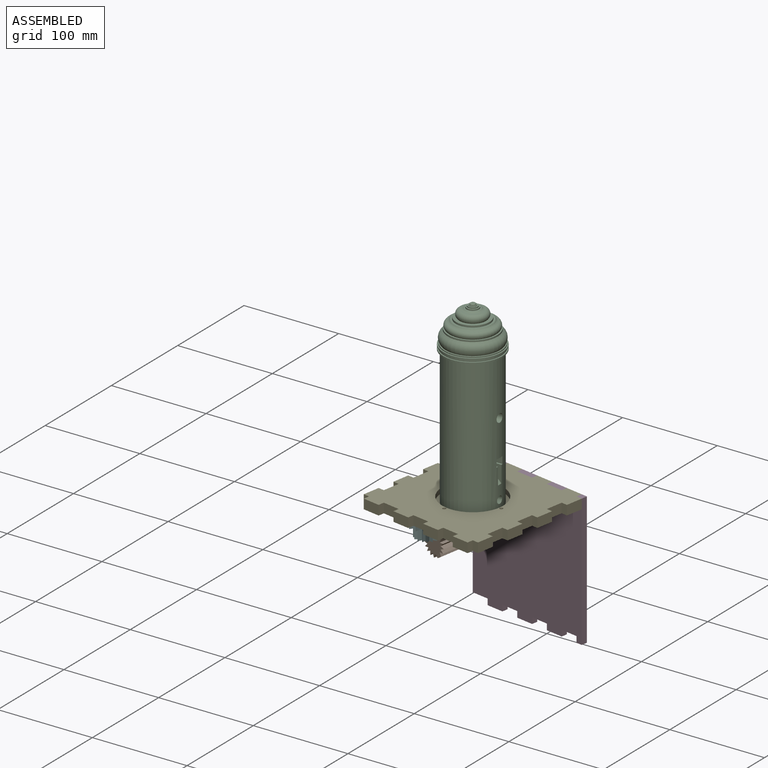
[diagram: assembled view]
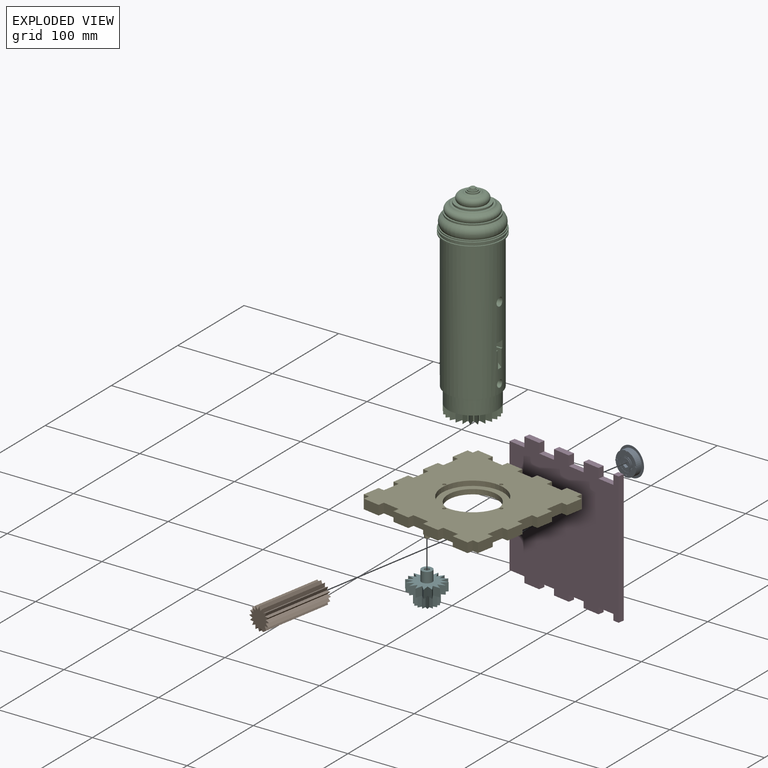
[diagram: exploded view]
GUIDED TOUR — MATED ASSEMBLY WITH SUBASSEMBLIES (Onshape document 083625c64aeed9dc65ab08f8, AutoMate assembly 083625c64aeed9dc65ab08f8_ea24382ef37ff4e3d2d488db_f4f4e9598ff6694f05141129_default)

This assembly has 22 component occurrences arranged in 6 top-level units: 5 individual components plus 1 subassembly (S0). The tour has two levels: first the top level, where each subassembly is treated as one rigid unit; then each subassembly is toured internally in its own section (nesting deeper than one subassembly level is flattened into its subassembly's section).

Components are labeled P0..P21 across the whole record; subassembly units are labeled S0..S0. A mate is a constraint between two units; its type names the relative motion it leaves free:
  CYLINDRICAL — leaves both rotation about and translation along the listed axis free,
  PLANAR — leaves sliding in the plane through the listed point (normal = the listed direction) and rotation about that normal free.
Axis/direction vectors are unit vectors and 'through' points are millimeter coordinates, both in the assembly's world frame.

TOP-LEVEL MATES (between units; each subassembly's internal mates are listed in its own section)
  1. PLANAR "Planar 4": P15 <-> P6, direction (0.985, -0.174, 0.000) through (39.18, -11.02, -2.93) mm
  2. PLANAR "Planar 2": P2 <-> S0, direction (-0.985, 0.174, 0.000) through (-59.83, 8.89, -51.19) mm
  3. PLANAR "Planar 6": P15 <-> P6, direction (0.174, 0.985, 0.000) through (42.31, -11.57, -2.93) mm
  4. PLANAR "Planar 5": P15 <-> P6, direction (0.000, 0.000, -1.000) through (-34.33, -62.51, -8.01) mm
  5. CYLINDRICAL "Cylindrical 4": P19 <-> P15, axis (0.000, 0.000, -1.000) through (-71.94, -78.05, -24.26) mm
  6. CYLINDRICAL "Cylindrical 3": P5 <-> P15, axis (0.000, 0.000, 1.000) through (-34.38, -62.53, -11.18) mm
  7. PLANAR "Planar 3": P2 <-> S0, direction (0.492, -0.087, 0.866) through (-55.42, 6.50, -48.44) mm
  8. PLANAR "Planar 8": P5 <-> P15, direction (0.000, 0.000, -1.000) through (-34.38, -62.53, -2.93) mm
  9. PLANAR "Planar 1": P15 <-> P19, direction (0.000, 0.000, -1.000) through (-34.33, -62.51, -8.01) mm
  10. CYLINDRICAL "Cylindrical 5": S0 <-> P6, axis (0.174, 0.985, 0.000) through (-56.57, 9.09, -51.19) mm
  11. PLANAR "Planar 9": P2 <-> S0, direction (0.174, 0.985, 0.000) through (-58.05, 5.35, -41.11) mm
  12. PLANAR "Planar 7": S0 <-> P6, direction (-0.174, -0.985, 0.000) through (-56.02, 12.22, -51.19) mm

TOP-LEVEL ASSEMBLY ORDER
  1. P15 — the base component [order heuristic]
  2. P6 [order verified]
  3. P19 — core [order heuristic]
  4. S0 [order verified]
  5. P5 — core [order heuristic]
  6. P2 [order verified]
(P6 verified with a relaxed clearance tolerance: the source model stores slight part interference there.)
Order-tag legend:
  [order verified] — this step's position reverses a verified removal order: the component was checked to insert without passing through the ones already placed.
  [order heuristic] — the first 3 components form the assembly's core: parts whose collision-free extraction could not be verified, listed in mate-graph order.

Of the 22 component occurrences, 19 carry the full construction recipe — the FeatureScript program that regenerates the part's solid from scratch; the rest are supplied as boundary geometry only. Each toured unit is shown spotlighted twice — assembled, then exploded with a leader line back to its socket (green = recipe-attached component, orange = geometry-only, blue = subassembly unit; the rest desaturated gray).
NOTE — document 2 of 2 of this assembly tour. The two overview renders and the header above are repeated from document 1; the component sections below continue where the previous document stopped.
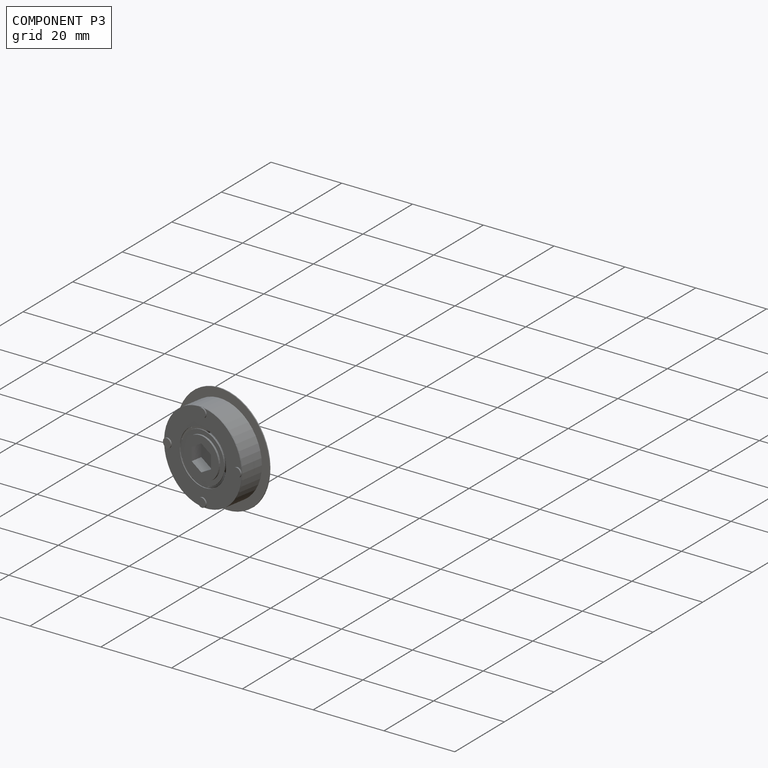
[diagram: component P3 — assembled]
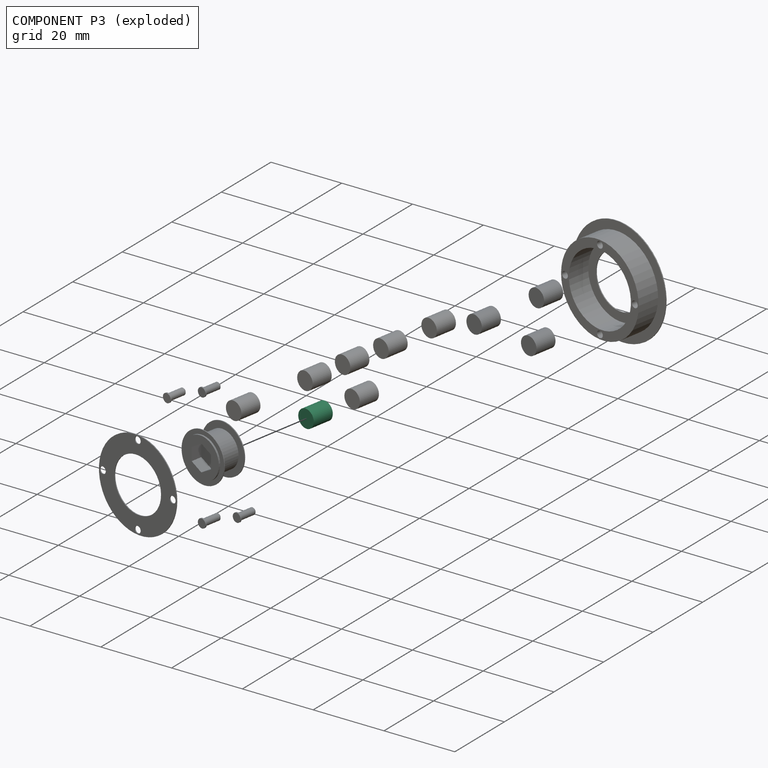
[diagram: component P3 — exploded]
COMPONENT P3 — same part as P0 (CADFS 00150288); its construction recipe is shown at P0.
Held by: PLANAR mate "Planar 4" to P1; PLANAR mate "Planar 4" to P1.
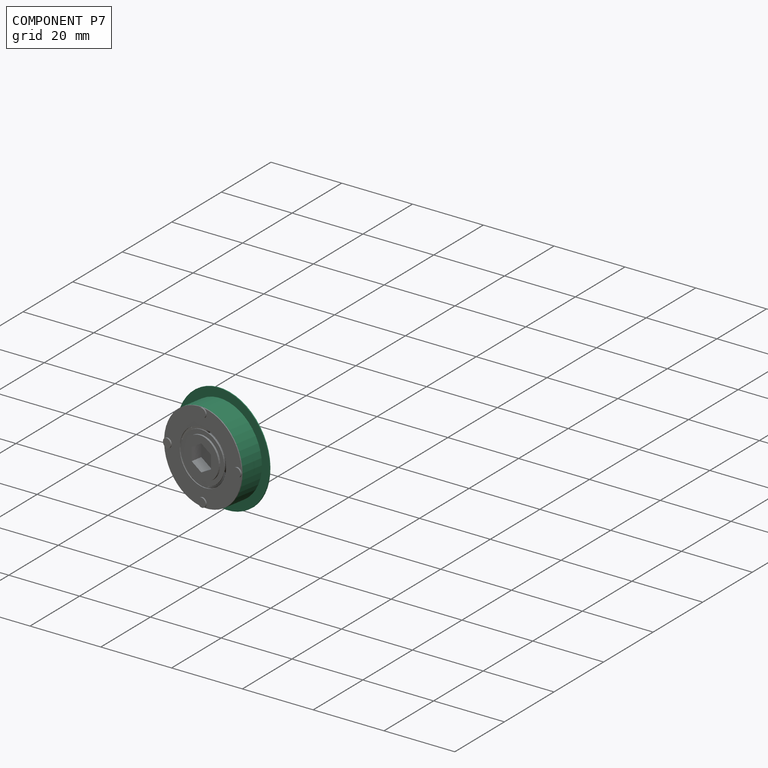
[diagram: component P7 — assembled]
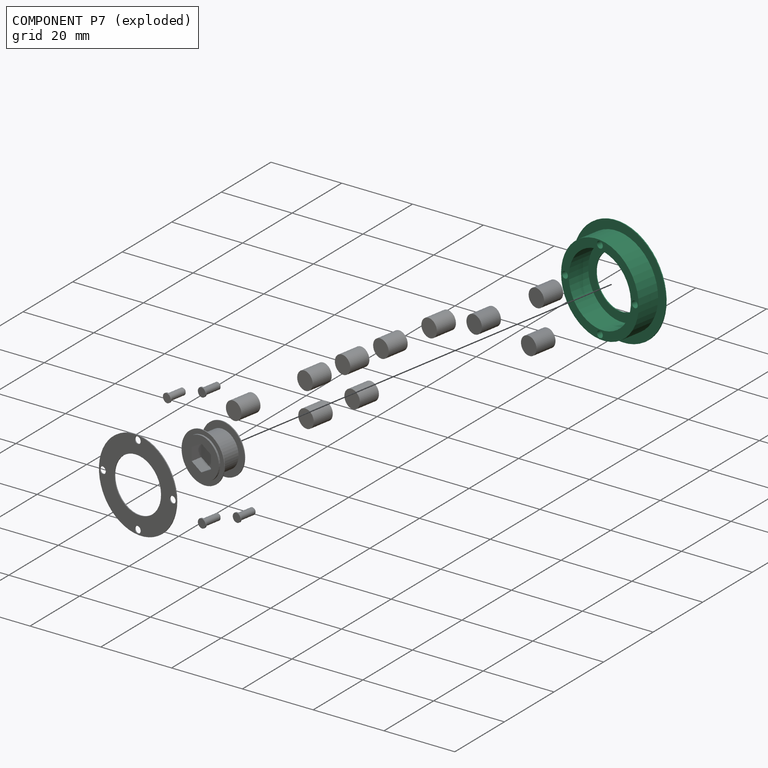
[diagram: component P7 — exploded]
COMPONENT P7 — recipe-attached (CADFS 00150289, mesh-verified: the recipe's output STEP matches this component's geometry to below the mesh-comparison resolution (tessellation chordal tolerance ~0.0654 mm)).
Held by: CYLINDRICAL mate "Cylindrical 2" to P20; PLANAR mate "Planar 6" to P17; PLANAR mate "Planar 12" to P20; PLANAR mate "Planar 1" to P1; PLANAR mate "Planar 2" to P10; CYLINDRICAL mate "Cylindrical 1" to P1; CYLINDRICAL mate "Cylindrical 1" to P1; CYLINDRICAL mate "Cylindrical 2" to P20; PLANAR mate "Planar 1" to P1; PLANAR mate "Planar 6" to P17; PLANAR mate "Planar 12" to P20; CYLINDRICAL mate "Cylindrical 1" to P1; PLANAR mate "Planar 2" to P10.
Construction recipe (FeatureScript — the CAD program that rebuilds this solid; sketch coordinates are in the units given by the * unit suffixes, e.g. mm):

FeatureScript 1511;
import(path : "onshape/std/geometry.fs", version : "1511.0");
import(path : "onshape/std/common.fs", version : "1511.0");
const mm = millimeter;
const VERTEX = EntityType.VERTEX;
const EDGE = EntityType.EDGE;
const FACE = EntityType.FACE;
const BODY = EntityType.BODY;
function v(x, y){return vector(x, y);}
function OD(order){return orderDisambiguation(order);}
function OSD(set){return originalSetDisambiguation(set);}
function TD(topology){return topologyDisambiguation(topology);}
function TDD(query){return trueDependencyDisambiguation(query);}
function sQuery(a, b, c) {return sketchEntityQuery(a, b, c);}

annotation { "Feature Type Name" : "Feature", "Feature Type Description" : "" }
export const myFeature = defineFeature(function(context is Context, id is Id, definition is map)
    precondition{}
    {
        {
            var Q0;
            Q0=qCreatedBy(makeId("Front.planeOp"),FACE);
            var sketch = newSketch(context, id + "F0", { "sketchPlane" : qUnion([Q0])});
            skLineSegment(sketch, "E0.bottom", {"start": v(-12.7, 2.54) * mm, "end": v(-10.16, 2.54) * mm});
            skLineSegment(sketch, "E0.top", {"start": v(-12.7, -3.8) * mm, "end": v(-10.16, -3.8) * mm});
            skLineSegment(sketch, "E0.left", {"start": v(-12.7, 2.54) * mm, "end": v(-12.7, -3.8) * mm});
            skLineSegment(sketch, "E0.right", {"start": v(-10.16, 2.54) * mm, "end": v(-10.16, -3.8) * mm});
            skLineSegment(sketch, "E1.bottom", {"start": v(-12.7, 2.54) * mm, "end": v(-7.62, 2.54) * mm});
            skLineSegment(sketch, "E1.top", {"start": v(-12.7, 2.8) * mm, "end": v(-7.62, 2.8) * mm});
            skLineSegment(sketch, "E1.left", {"start": v(-12.7, 2.54) * mm, "end": v(-12.7, 2.8) * mm});
            skLineSegment(sketch, "E1.right", {"start": v(-7.62, 2.54) * mm, "end": v(-7.62, 2.8) * mm});
            skLineSegment(sketch, "E2", {"start": v(0, 2.9) * mm, "end": v(0, -2.8) * mm});
            skLineSegment(sketch, "E3.bottom", {"start": v(-12.7, 2.54) * mm, "end": v(-15.24, 2.54) * mm});
            skLineSegment(sketch, "E3.top", {"start": v(-12.7, 2.8) * mm, "end": v(-15.24, 2.8) * mm});
            skLineSegment(sketch, "E3.right", {"start": v(-15.24, 2.54) * mm, "end": v(-15.24, 2.8) * mm});
            skSolve(sketch);
        }
        {
            var Q0;
            Q0 = qSketchRegion(id + "F0", true);
            var Q1;
            Q1=sQuery(id+"F0.wireOp",EDGE,"E2");
            revolve(context, id + "F1", {"entities" : qUnion([Q0]), "axis" : qUnion([Q1]), "revolveType" : RevolveType.FULL});
        }
        {
            var Q0;
            Q0=makeQuery(id+"F1.opRevolve","SWEPT_FACE",FACE,{"disambiguationData":[OSD([sQuery(id+"F0.wireOp",EDGE,"E0.top")])]});
            var sketch = newSketch(context, id + "F2", { "sketchPlane" : qUnion([Q0])});
            skCircle(sketch, "E4", {"center": v(0, 11.43) * mm, "radius": 0.95 * mm});
            skCircle(sketch, "E5", {"center": v(-11.43, 0) * mm, "radius": 0.95 * mm});
            skCircle(sketch, "E6", {"center": v(11.43, 0) * mm, "radius": 0.95 * mm});
            skCircle(sketch, "E7", {"center": v(0, -11.43) * mm, "radius": 0.95 * mm});
            skSolve(sketch);
        }
        {
            var Q0;
            Q0 = qSketchRegion(id + "F2", true);
            extrude(context, id + "F3", {"entities" : qUnion([Q0]), "operationType" : NewBodyOperationType.REMOVE, "oppositeDirection" : true, "depth" : 5.08 * mm});
        }
    });
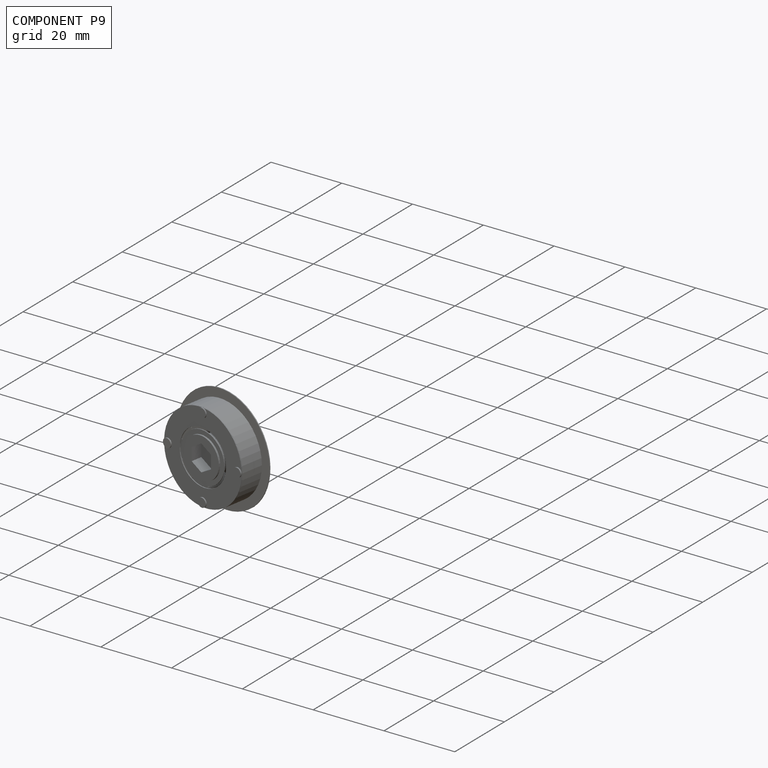
[diagram: component P9 — assembled]
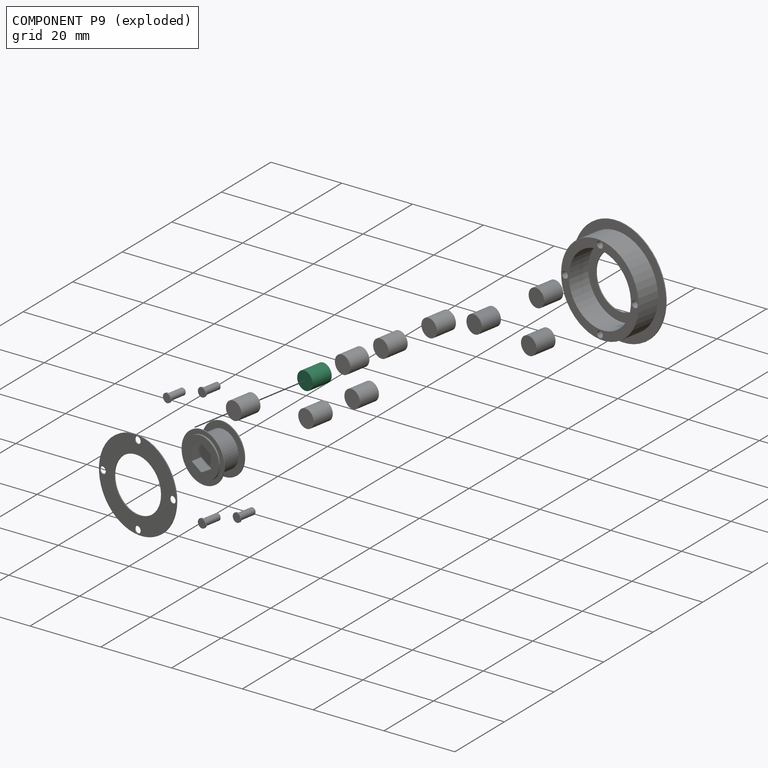
[diagram: component P9 — exploded]
COMPONENT P9 — same part as P0 (CADFS 00150288); its construction recipe is shown at P0.
Held by: PLANAR mate "Planar 10" to P1; PLANAR mate "Planar 10" to P1.
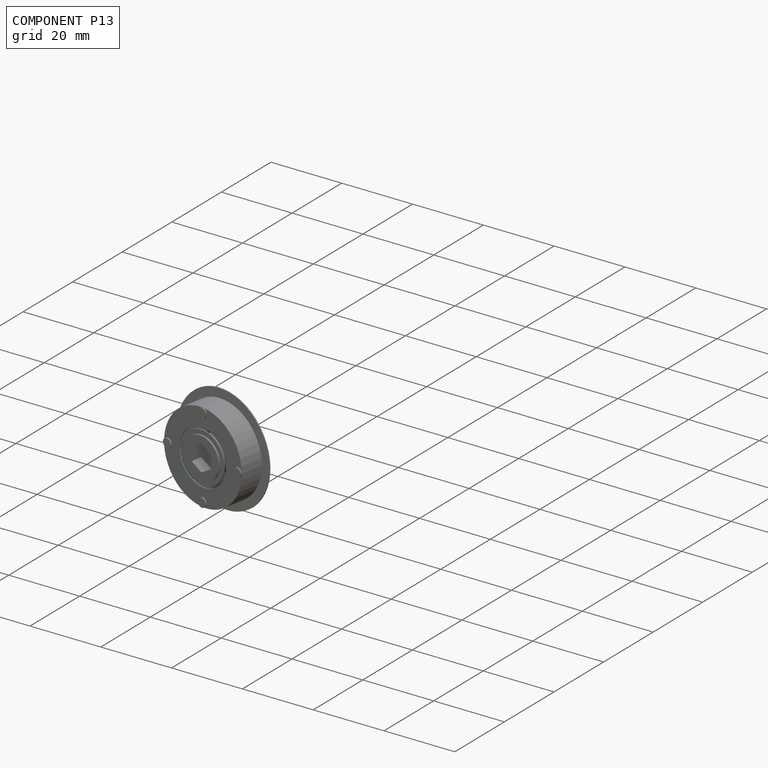
[diagram: component P13 — assembled]
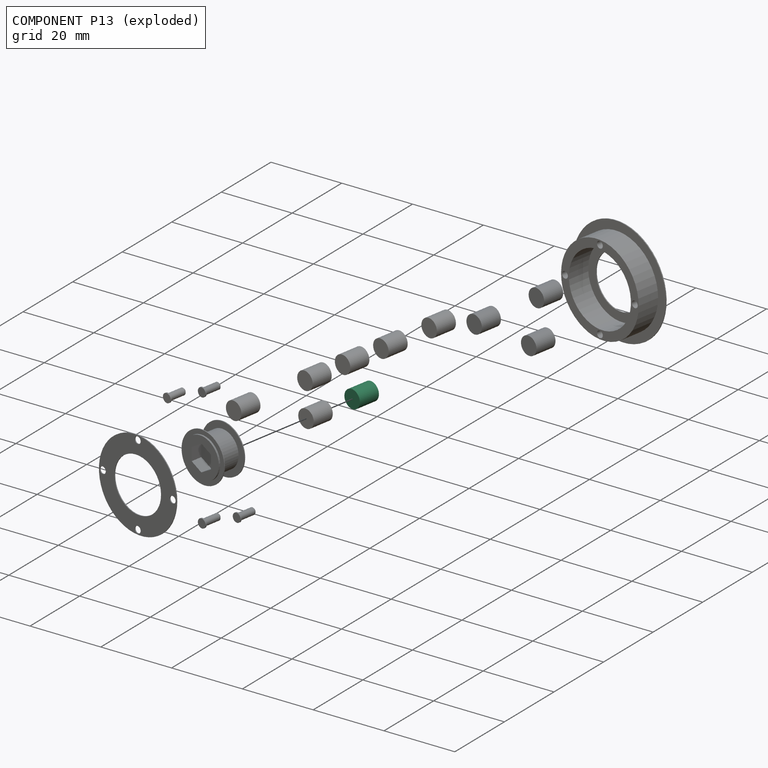
[diagram: component P13 — exploded]
COMPONENT P13 — same part as P0 (CADFS 00150288); its construction recipe is shown at P0.
Held by: PLANAR mate "Planar 3" to P1; PLANAR mate "Planar 3" to P1.
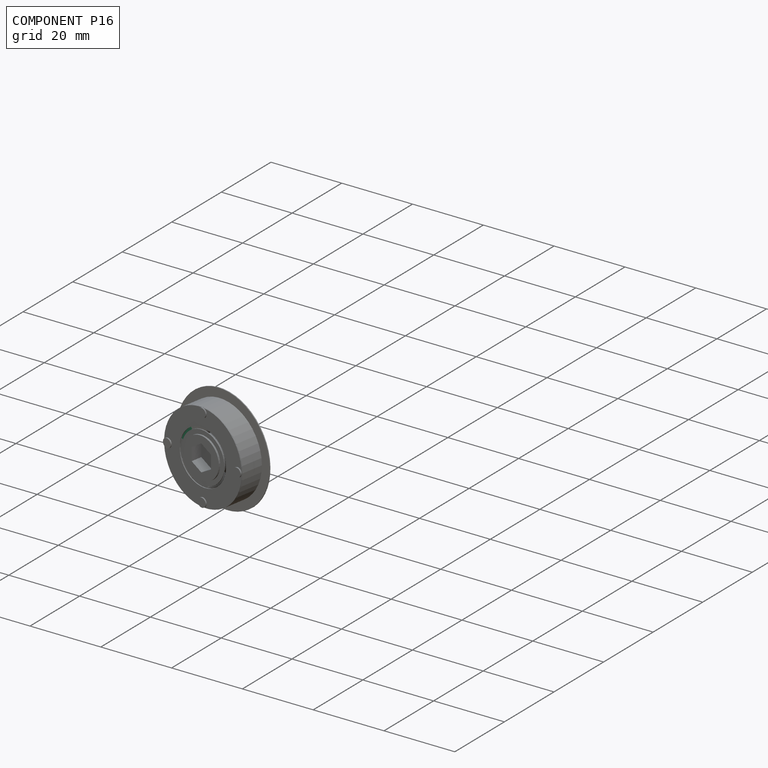
[diagram: component P16 — assembled]
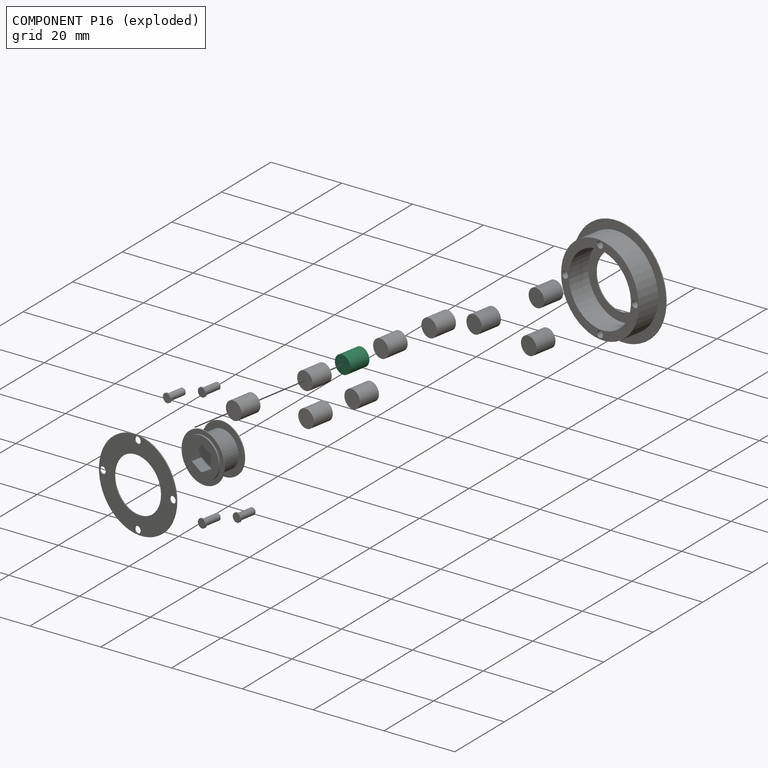
[diagram: component P16 — exploded]
COMPONENT P16 — same part as P0 (CADFS 00150288); its construction recipe is shown at P0.
Held by: PLANAR mate "Planar 9" to P1; PLANAR mate "Planar 9" to P1.
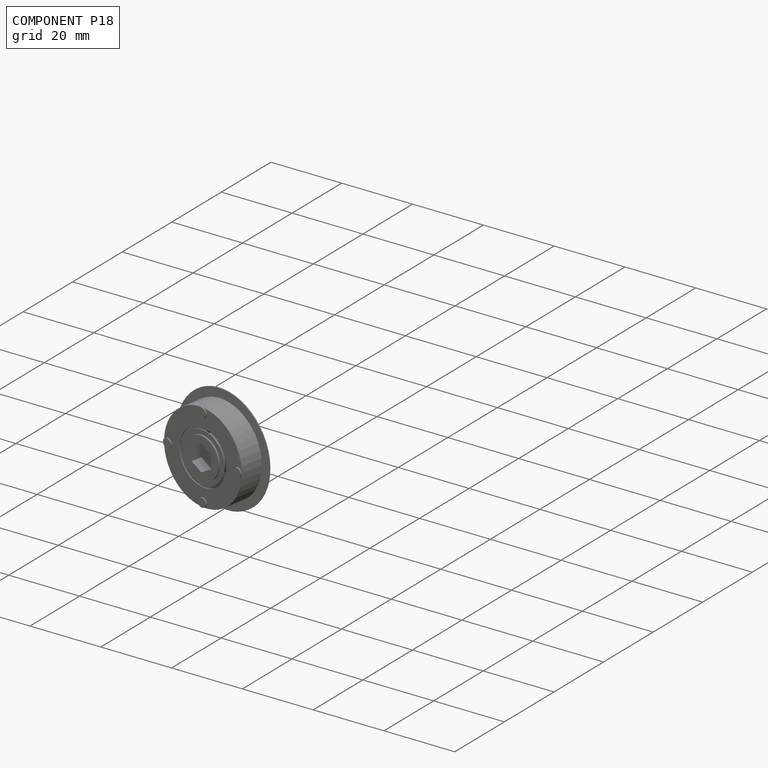
[diagram: component P18 — assembled]
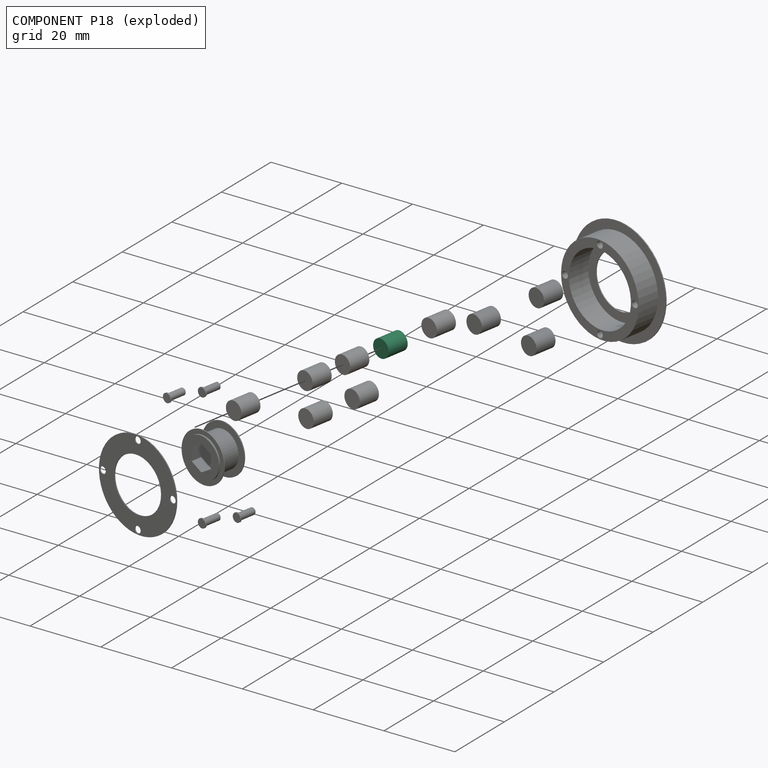
[diagram: component P18 — exploded]
COMPONENT P18 — same part as P0 (CADFS 00150288); its construction recipe is shown at P0.
Held by: PLANAR mate "Planar 7" to P1; PLANAR mate "Planar 7" to P1.
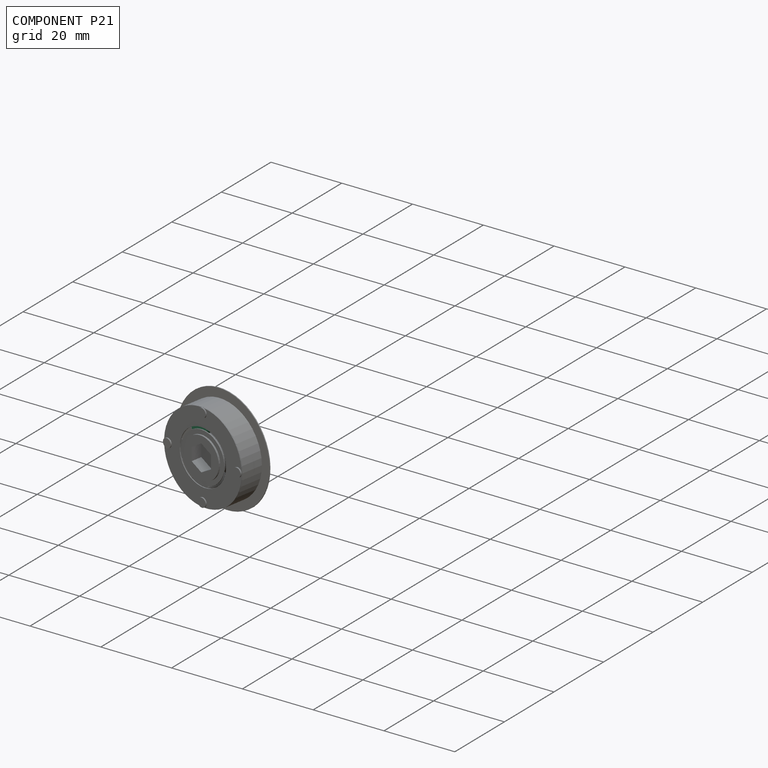
[diagram: component P21 — assembled]
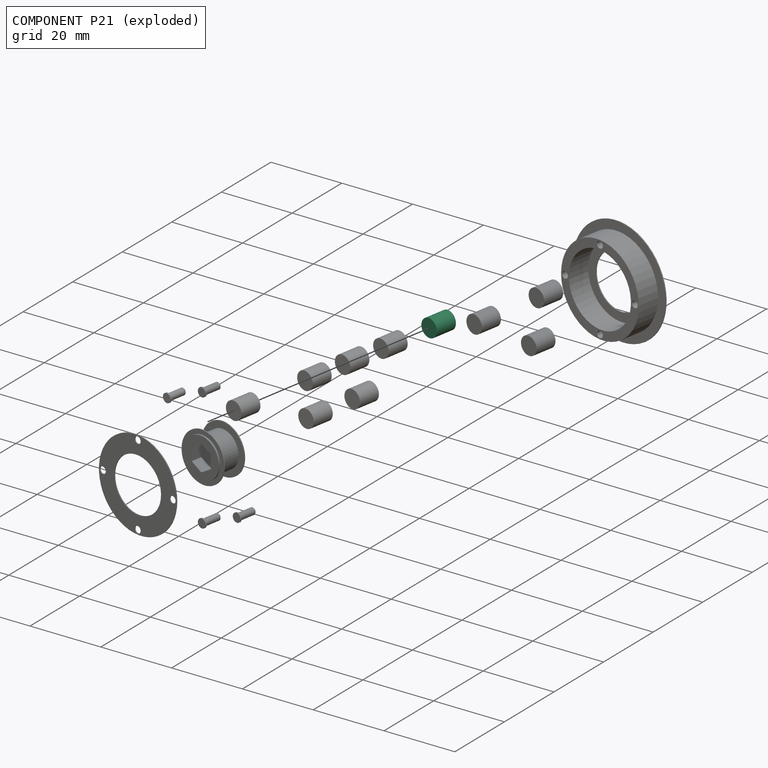
[diagram: component P21 — exploded]
COMPONENT P21 — same part as P0 (CADFS 00150288); its construction recipe is shown at P0.
Held by: PLANAR mate "Planar 8" to P1; PLANAR mate "Planar 8" to P1.
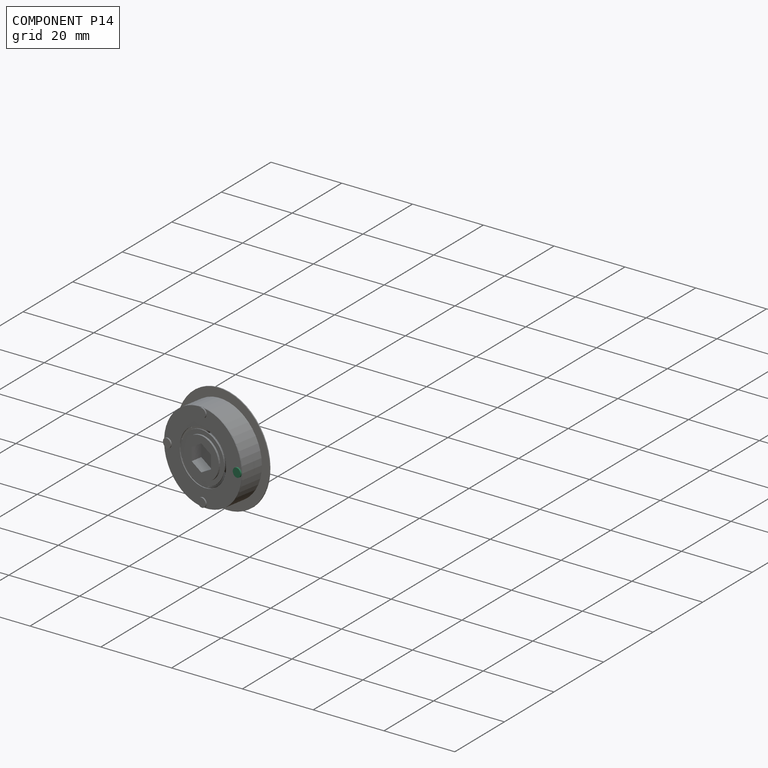
[diagram: component P14 — assembled]
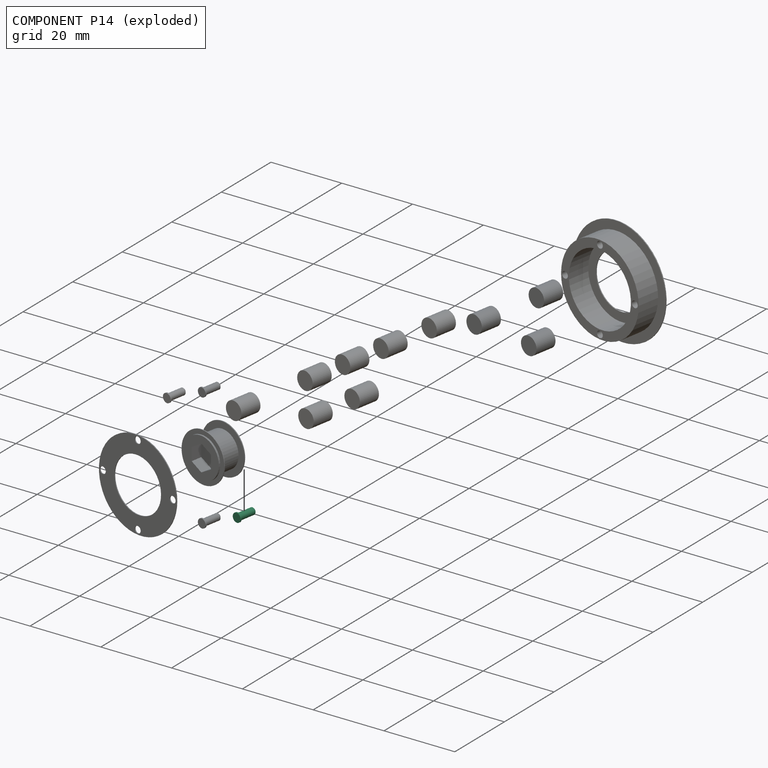
[diagram: component P14 — exploded]
COMPONENT P14 — same part as P4 (CADFS 00150294); its construction recipe is shown at P4.
Held by: PLANAR mate "Planar 14" to P20; CYLINDRICAL mate "Cylindrical 4" to P20; CYLINDRICAL mate "Cylindrical 4" to P20; PLANAR mate "Planar 14" to P20.
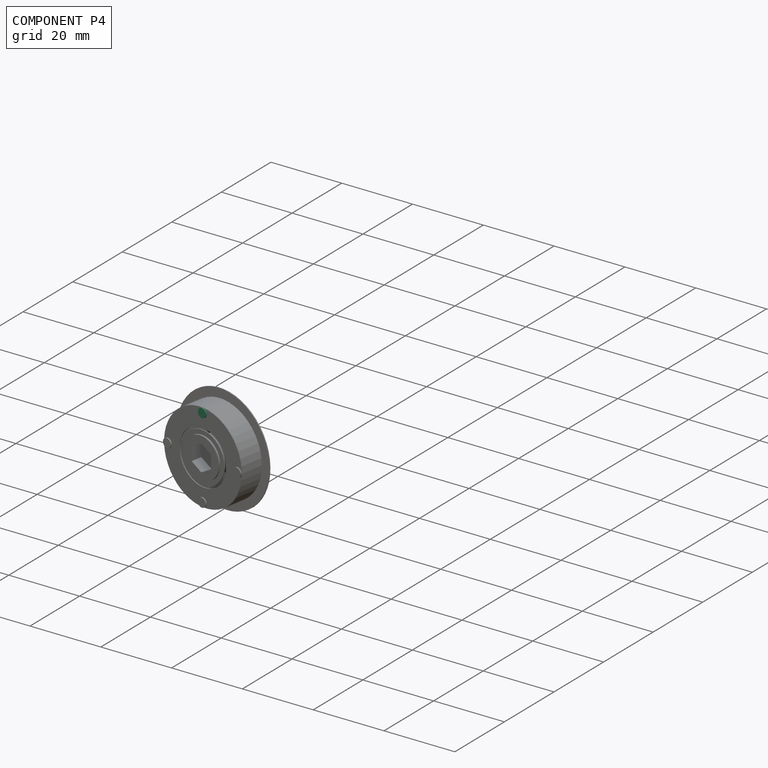
[diagram: component P4 — assembled]
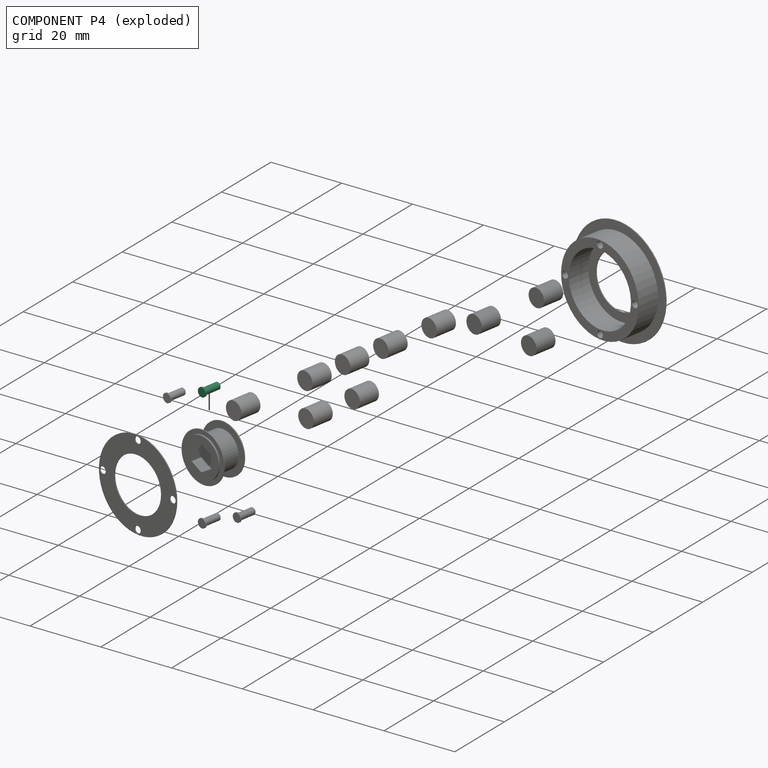
[diagram: component P4 — exploded]
COMPONENT P4 — recipe-attached (CADFS 00150294, mesh-verified: the recipe's output STEP matches this component's geometry to below the mesh-comparison resolution (tessellation chordal tolerance ~0.0098 mm)).
Held by: PLANAR mate "Planar 13" to P20; CYLINDRICAL mate "Cylindrical 3" to P20; CYLINDRICAL mate "Cylindrical 3" to P20; PLANAR mate "Planar 13" to P20.
Construction recipe (FeatureScript — the CAD program that rebuilds this solid; sketch coordinates are in the units given by the * unit suffixes, e.g. mm):

FeatureScript 1511;
import(path : "onshape/std/geometry.fs", version : "1511.0");
import(path : "onshape/std/common.fs", version : "1511.0");
const mm = millimeter;
const VERTEX = EntityType.VERTEX;
const EDGE = EntityType.EDGE;
const FACE = EntityType.FACE;
const BODY = EntityType.BODY;
function v(x, y){return vector(x, y);}
function OD(order){return orderDisambiguation(order);}
function OSD(set){return originalSetDisambiguation(set);}
function TD(topology){return topologyDisambiguation(topology);}
function TDD(query){return trueDependencyDisambiguation(query);}
function sQuery(a, b, c) {return sketchEntityQuery(a, b, c);}

annotation { "Feature Type Name" : "Feature", "Feature Type Description" : "" }
export const myFeature = defineFeature(function(context is Context, id is Id, definition is map)
    precondition{}
    {
        {
            var Q0;
            Q0=qCreatedBy(makeId("Front.planeOp"),FACE);
            var sketch = newSketch(context, id + "F0", { "sketchPlane" : qUnion([Q0])});
            skCircle(sketch, "E0", {"center": v(0, 0) * mm, "radius": 0.95 * mm});
            skSolve(sketch);
        }
        {
            var Q0;
            Q0 = qSketchRegion(id + "F0", true);
            extrude(context, id + "F1", {"entities" : qUnion([Q0]), "depth" : 5.08 * mm});
        }
        {
            var Q0;
            Q0=makeQuery(id+"F1.opExtrude","CAP_FACE",FACE,{"disambiguationData":[OSD([sQuery(id+"F0.wireOp",EDGE,"E0")])],"isStart":false});
            var sketch = newSketch(context, id + "F2", { "sketchPlane" : qUnion([Q0])});
            skCircle(sketch, "E1", {"center": v(0, 0) * mm, "radius": 1.27 * mm});
            skSolve(sketch);
        }
        {
            var Q0;
            Q0 = qSketchRegion(id + "F2", true);
            extrude(context, id + "F3", {"entities" : qUnion([Q0]), "operationType" : NewBodyOperationType.ADD, "depth" : 0.38 * mm});
        }
        {
            var Q0;
            Q0=makeQuery(id+"F1.opExtrude","CAP_EDGE",EDGE,{"disambiguationData":[OSD([sQuery(id+"F0.wireOp",EDGE,"E0")])],"isStart":true});
            chamfer(context, id + "F4", {"entities" : qUnion([Q0]), "width" : 0.25 * mm, "tangentPropagation" : true});
        }
    });
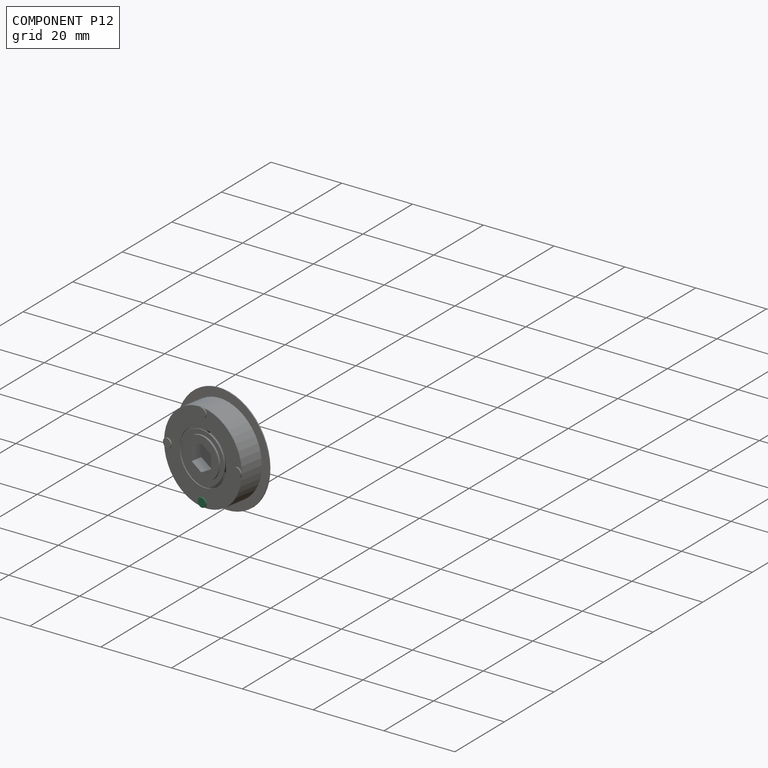
[diagram: component P12 — assembled]
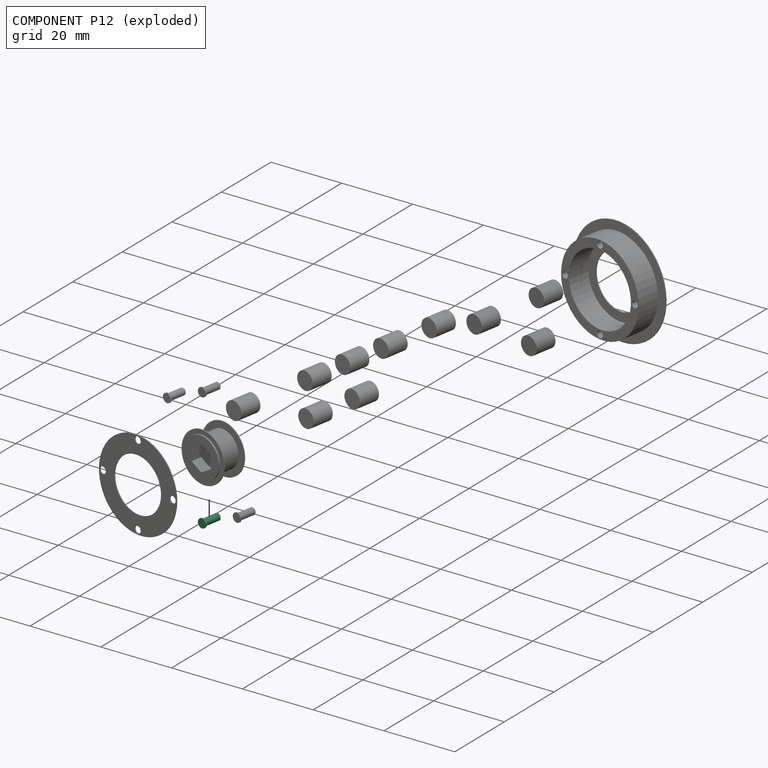
[diagram: component P12 — exploded]
COMPONENT P12 — same part as P4 (CADFS 00150294); its construction recipe is shown at P4.
Held by: CYLINDRICAL mate "Cylindrical 6" to P20; PLANAR mate "Planar 16" to P20; PLANAR mate "Planar 16" to P20; CYLINDRICAL mate "Cylindrical 6" to P20.
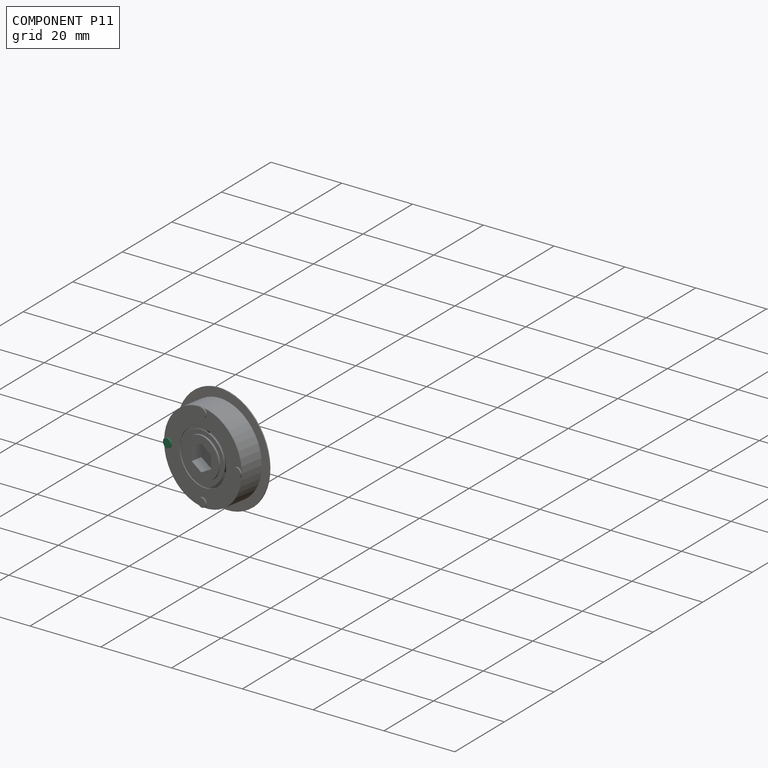
[diagram: component P11 — assembled]
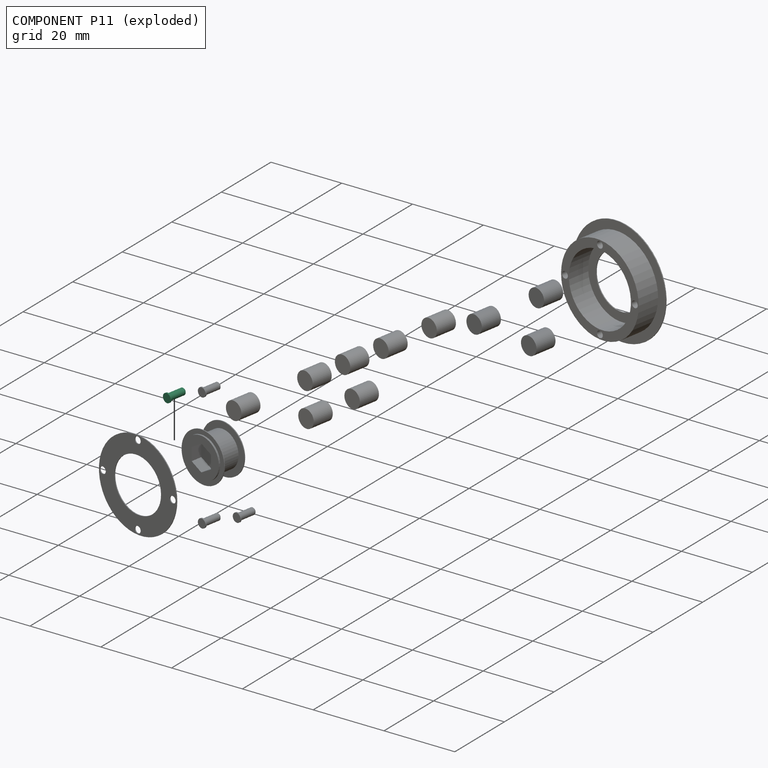
[diagram: component P11 — exploded]
COMPONENT P11 — same part as P4 (CADFS 00150294); its construction recipe is shown at P4.
Held by: PLANAR mate "Planar 15" to P20; CYLINDRICAL mate "Cylindrical 5" to P20; PLANAR mate "Planar 15" to P20; CYLINDRICAL mate "Cylindrical 5" to P20.
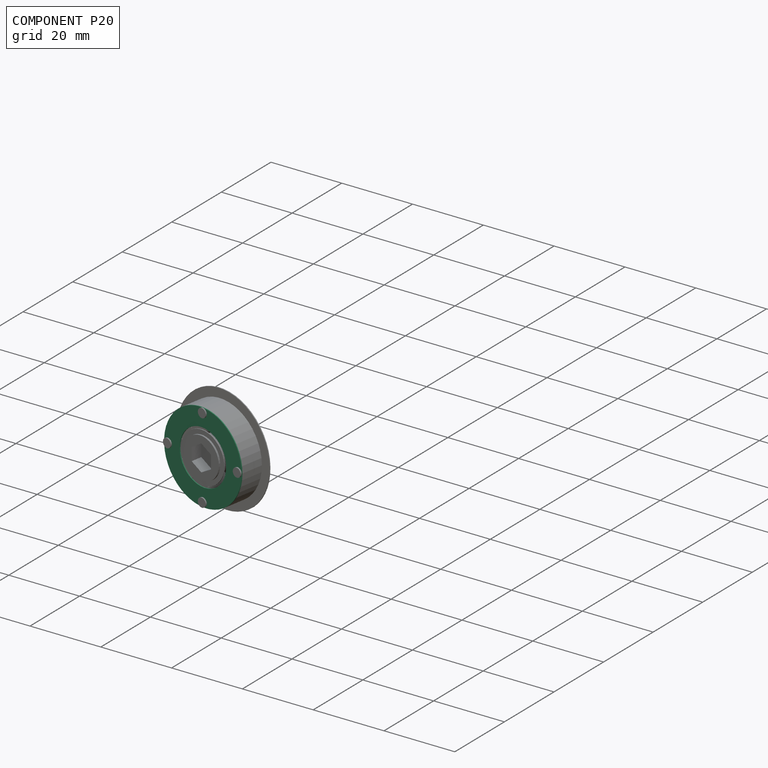
[diagram: component P20 — assembled]
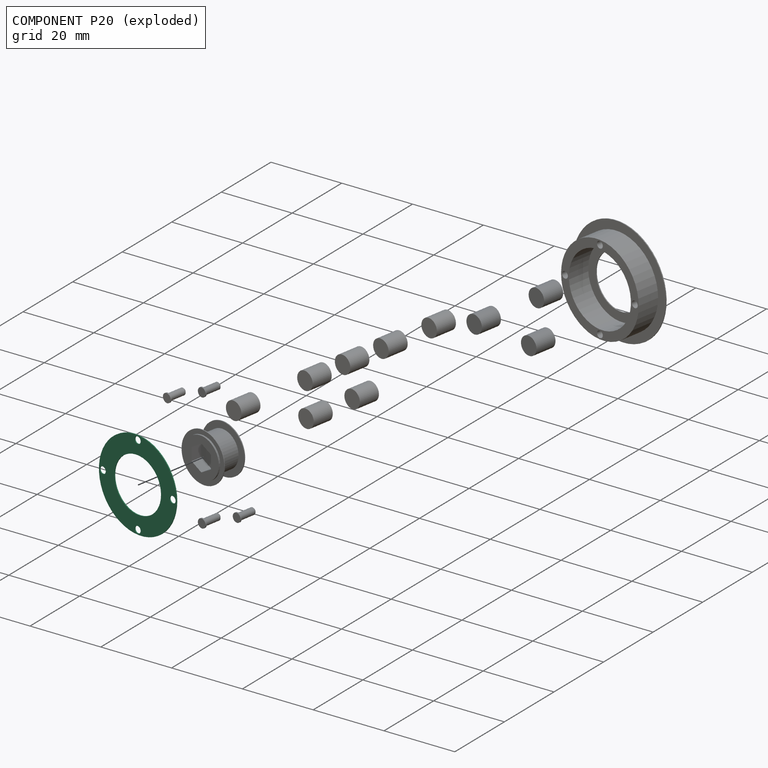
[diagram: component P20 — exploded]
COMPONENT P20 — recipe-attached (CADFS 00150292, mesh-verified: the recipe's output STEP matches this component's geometry to below the mesh-comparison resolution (tessellation chordal tolerance ~0.0538 mm)).
Held by: PLANAR mate "Planar 15" to P11; CYLINDRICAL mate "Cylindrical 2" to P7; PLANAR mate "Planar 14" to P14; CYLINDRICAL mate "Cylindrical 4" to P14; PLANAR mate "Planar 12" to P7; PLANAR mate "Planar 13" to P4; CYLINDRICAL mate "Cylindrical 6" to P12; CYLINDRICAL mate "Cylindrical 5" to P11; PLANAR mate "Planar 16" to P12; CYLINDRICAL mate "Cylindrical 3" to P4; PLANAR mate "Planar 15" to P11; PLANAR mate "Planar 16" to P12; CYLINDRICAL mate "Cylindrical 6" to P12; CYLINDRICAL mate "Cylindrical 2" to P7; CYLINDRICAL mate "Cylindrical 3" to P4; CYLINDRICAL mate "Cylindrical 5" to P11; CYLINDRICAL mate "Cylindrical 4" to P14; PLANAR mate "Planar 13" to P4; PLANAR mate "Planar 14" to P14; PLANAR mate "Planar 12" to P7.
Construction recipe (FeatureScript — the CAD program that rebuilds this solid; sketch coordinates are in the units given by the * unit suffixes, e.g. mm):

FeatureScript 1511;
import(path : "onshape/std/geometry.fs", version : "1511.0");
import(path : "onshape/std/common.fs", version : "1511.0");
const mm = millimeter;
const VERTEX = EntityType.VERTEX;
const EDGE = EntityType.EDGE;
const FACE = EntityType.FACE;
const BODY = EntityType.BODY;
function v(x, y){return vector(x, y);}
function OD(order){return orderDisambiguation(order);}
function OSD(set){return originalSetDisambiguation(set);}
function TD(topology){return topologyDisambiguation(topology);}
function TDD(query){return trueDependencyDisambiguation(query);}
function sQuery(a, b, c) {return sketchEntityQuery(a, b, c);}

annotation { "Feature Type Name" : "Feature", "Feature Type Description" : "" }
export const myFeature = defineFeature(function(context is Context, id is Id, definition is map)
    precondition{}
    {
        {
            var Q0;
            Q0=qCreatedBy(makeId("Front.planeOp"),FACE);
            var sketch = newSketch(context, id + "F0", { "sketchPlane" : qUnion([Q0])});
            skCircle(sketch, "E0", {"center": v(0, 0) * mm, "radius": 12.7 * mm});
            skCircle(sketch, "E1", {"center": v(0, 0) * mm, "radius": 7.62 * mm});
            skSolve(sketch);
        }
        {
            var Q0;
            Q0 = qSketchRegion(id + "F0", true);
            extrude(context, id + "F1", {"entities" : qUnion([Q0]), "depth" : 0.25 * mm});
        }
        {
            var Q0;
            Q0=makeQuery(id+"F1.opExtrude","CAP_FACE",FACE,{"disambiguationData":[OSD([sQuery(id+"F0.wireOp",EDGE,"E0"),sQuery(id+"F0.wireOp",EDGE,"E1")])],"isStart":false});
            var sketch = newSketch(context, id + "F2", { "sketchPlane" : qUnion([Q0])});
            skCircle(sketch, "E2", {"center": v(0, 11.43) * mm, "radius": 0.95 * mm});
            skCircle(sketch, "E3", {"center": v(11.43, 0) * mm, "radius": 0.95 * mm});
            skCircle(sketch, "E4", {"center": v(0, -11.43) * mm, "radius": 0.95 * mm});
            skCircle(sketch, "E5", {"center": v(-11.43, 0) * mm, "radius": 0.95 * mm});
            skSolve(sketch);
        }
        {
            var Q0;
            Q0 = qSketchRegion(id + "F2", true);
            extrude(context, id + "F3", {"entities" : qUnion([Q0]), "operationType" : NewBodyOperationType.REMOVE, "oppositeDirection" : true, "depth" : 25.4 * mm});
        }
    });
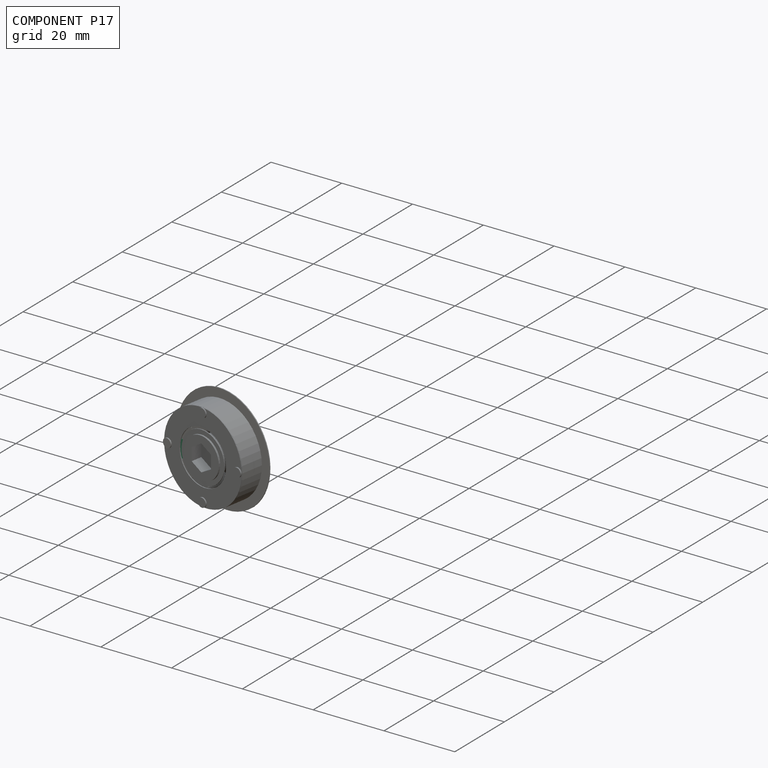
[diagram: component P17 — assembled]
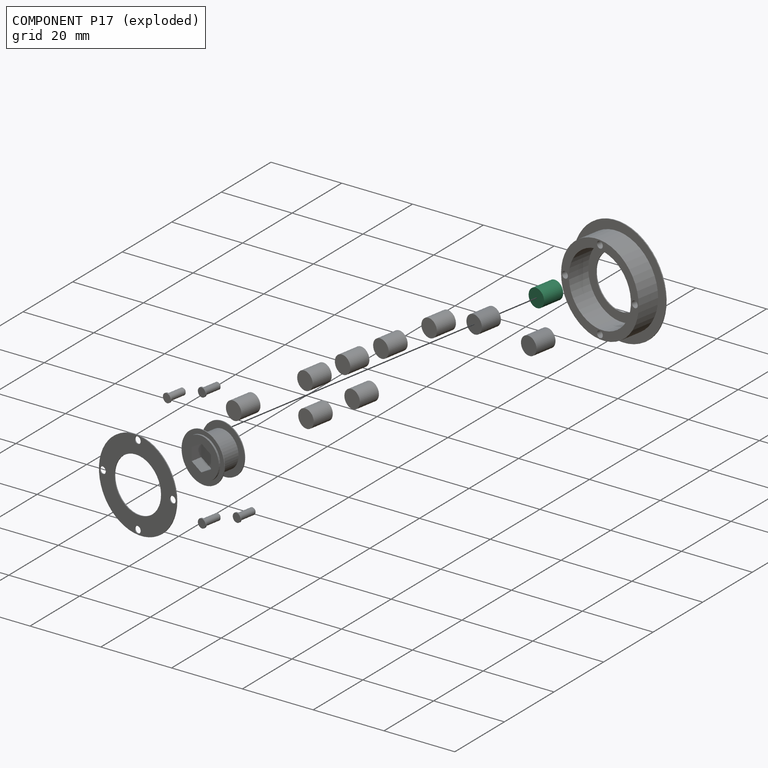
[diagram: component P17 — exploded]
COMPONENT P17 — same part as P0 (CADFS 00150288); its construction recipe is shown at P0.
Held by: PLANAR mate "Planar 6" to P7; PLANAR mate "Planar 6" to P7.
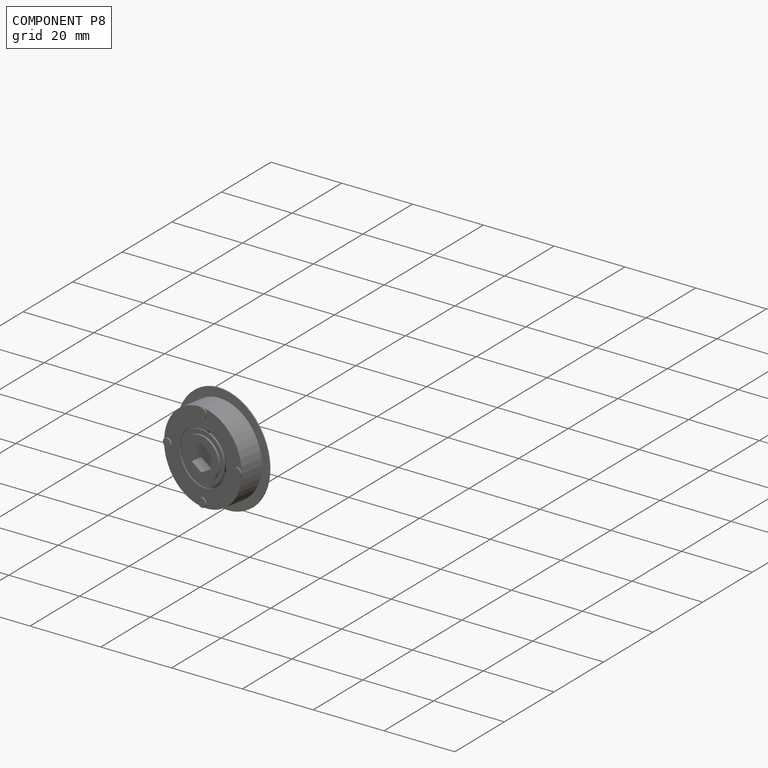
[diagram: component P8 — assembled]
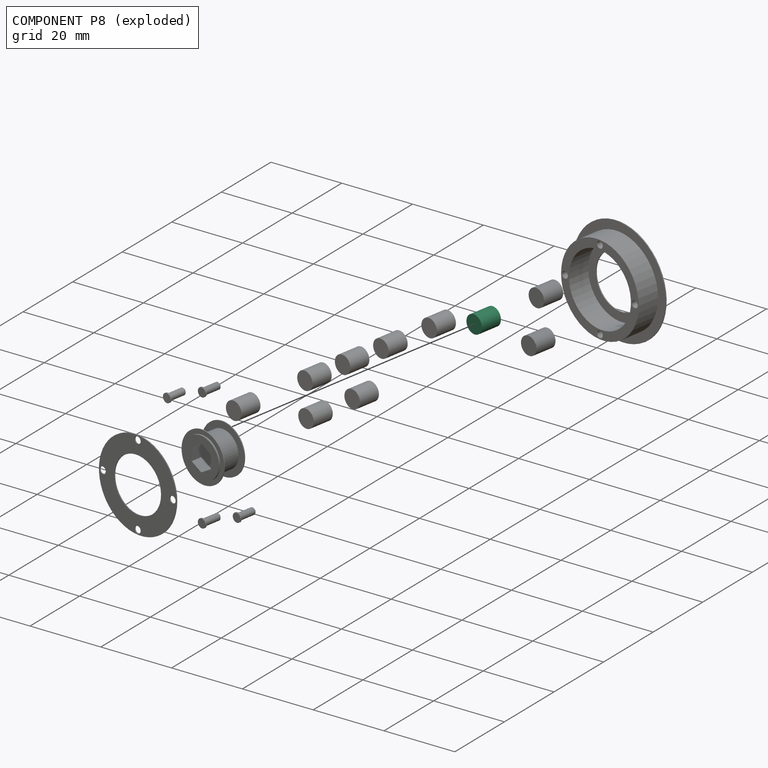
[diagram: component P8 — exploded]
COMPONENT P8 — same part as P0 (CADFS 00150288); its construction recipe is shown at P0.
Held by: PLANAR mate "Planar 5" to P1; PLANAR mate "Planar 5" to P1.
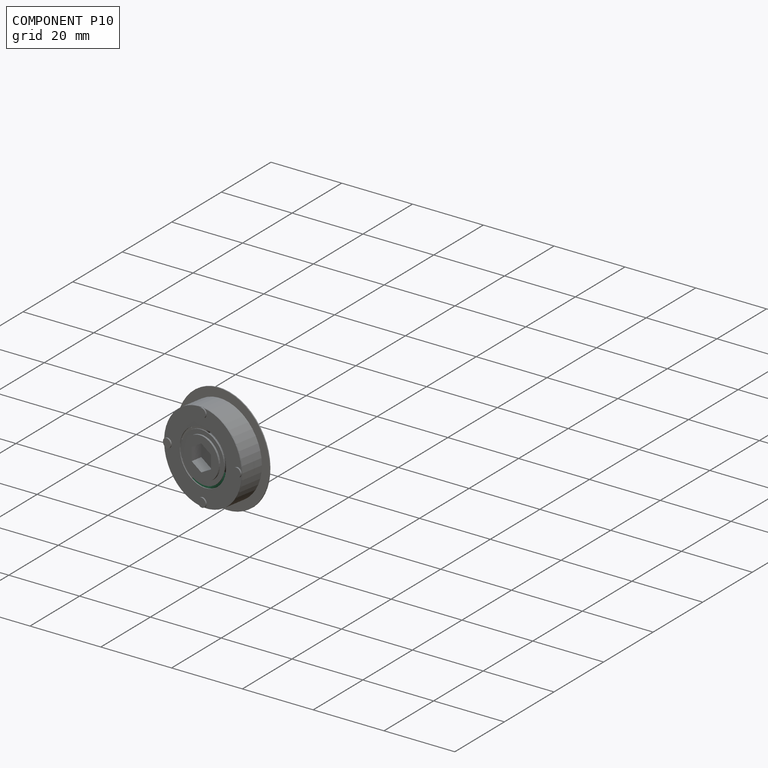
[diagram: component P10 — assembled]
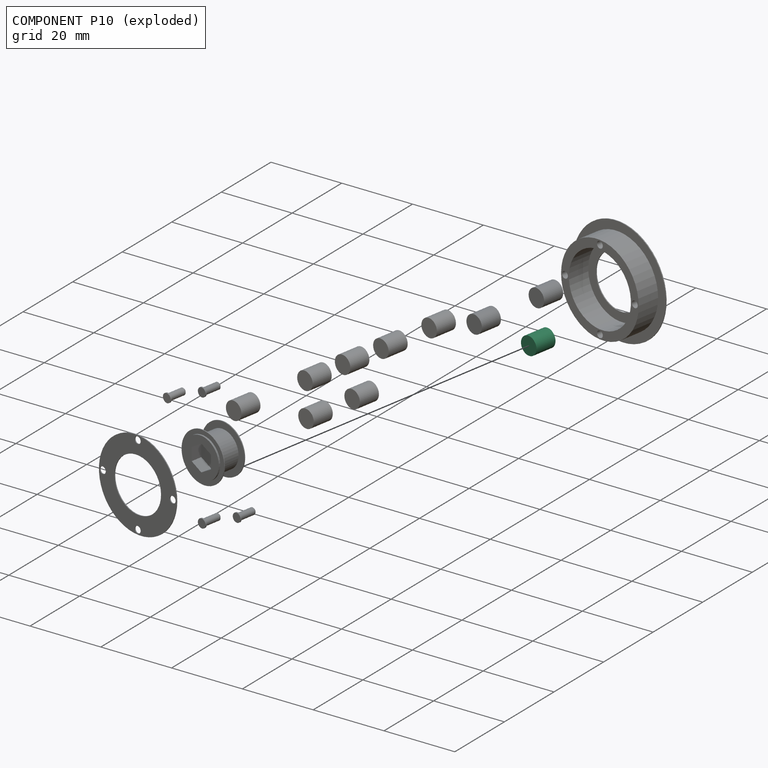
[diagram: component P10 — exploded]
COMPONENT P10 — same part as P0 (CADFS 00150288); its construction recipe is shown at P0.
Held by: PLANAR mate "Planar 2" to P7; PLANAR mate "Planar 2" to P7.
PROVENANCE & LICENSES
Assembly (occurrences, transforms, mates, per-part STEP geometry): AutoMate dataset, Zenodo record 7776208, CC0.
Construction recipes: CADFS (HuggingFace VladPyatov/CADFS, CC-BY-4.0, layered over the ABC dataset), FeatureScript reconstruction programs keyed by ABC model id.
Join: ABC meta listings map ABC model id -> Onshape documentId; within a shared document, parts are matched by geometric signature (bounding-box dims + volume at 0.1% relative tolerance, exact B-rep face/solid counts).
Verification: 19 of this assembly's 22 components carry a recipe attachment, and every attachment is mesh-verified: the CADFS STEP and the AutoMate member STEP were compared as meshes in their shared local frame (symmetric sampled-point-to-mesh distance); worst across the 19 attachments: below the mesh-comparison resolution (tessellation chordal tolerance ~0.29 mm) on a 193 mm part.
Renders: orthographic iso camera (az 35 / el 25); the floor grid conveys scale (grid pitch printed in each image; no ruler). In the exploded view each component is displaced by its stored offset vector: the offsets alone carry the explosion direction (mate normal/axis signs are not orientation cues and do not encode it), and separation distances are assigned per mate-chain, not proportionally to assembly-order depth.
